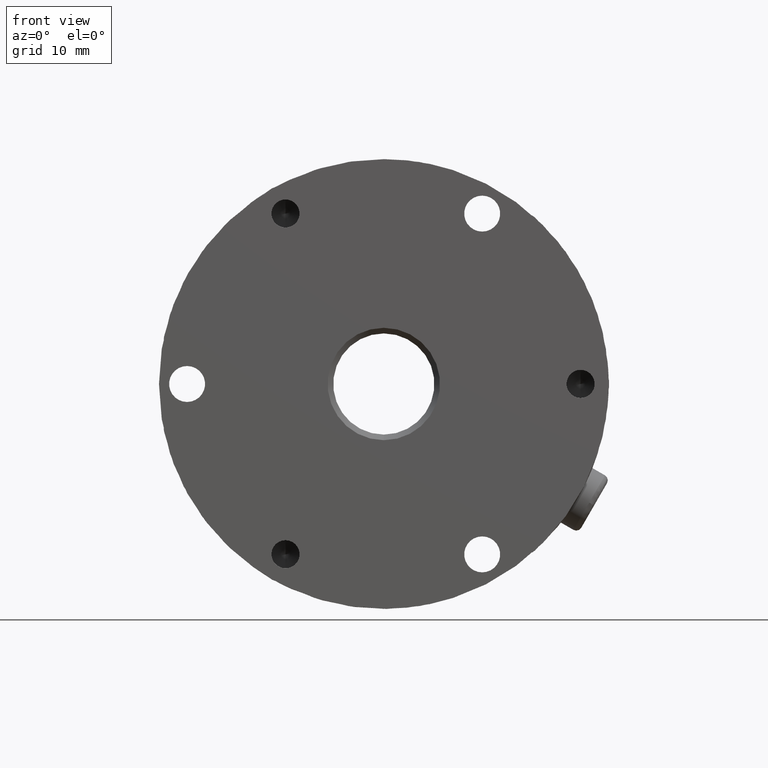
[diagram: clean part render]
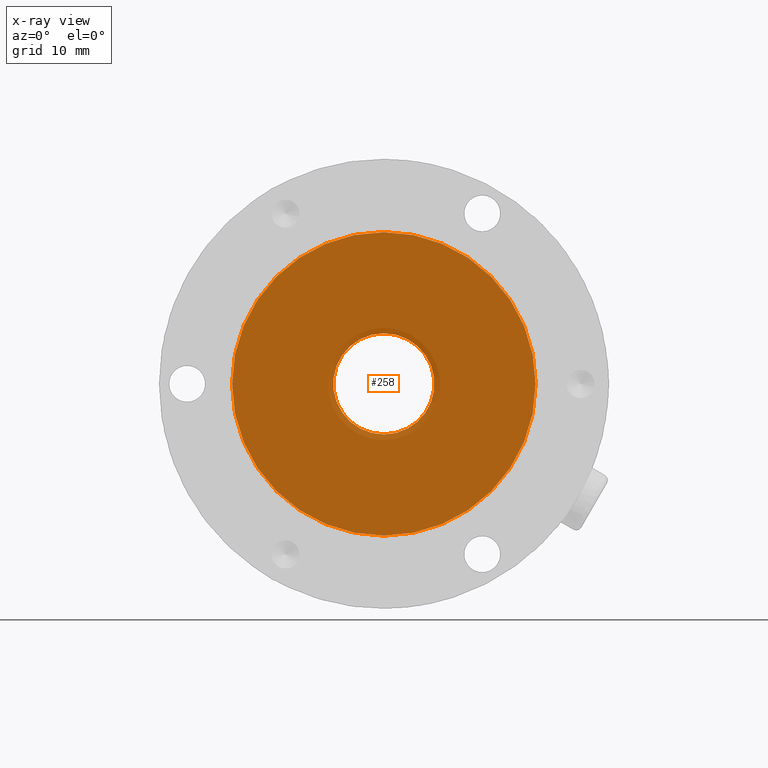
[diagram: x-ray — body ghosted, one internal face saturated and labeled with its STEP entity id]
A machine part, front view, then the same camera in x-ray: the body is ghosted and one INTERNAL B-rep face — a face not visible from any outside direction — is saturated and labeled: STEP entity #258.
In plain terms, the highlighted planar face has unit normal (-0, -1, -0).
Its self-contained STEP definition (entity closure, byte-faithful):
#258 = ADVANCED_FACE ( 'NONE', ( #4913, #8508 ), #6029, .T. ) ;
#638 = EDGE_CURVE ( 'NONE', #3051, #5550, #6712, .T. ) ;
#1601 = CIRCLE ( 'NONE', #1818, 13.50000000000000711 ) ;
#1818 = AXIS2_PLACEMENT_3D ( 'NONE', #3722, #4487, #2340 ) ;
#1919 = CARTESIAN_POINT ( 'NONE',  ( -0.1489901573797435541, -68.53216099891339752, 0.2983377589557917875 ) ) ;
#2264 = CARTESIAN_POINT ( 'NONE',  ( -0.1489901573797430268, -68.53216099891339752, -4.201662241044211932 ) ) ;
#2335 = CIRCLE ( 'NONE', #5479, 13.50000000000000711 ) ;
#2340 = DIRECTION ( 'NONE',  ( 0.0000000000000000000, 0.0000000000000000000, 1.000000000000000000 ) ) ;
#3051 = VERTEX_POINT ( 'NONE', #2264 ) ;
#3182 = DIRECTION ( 'NONE',  ( -1.963197694344906894E-17, -1.000000000000000000, -6.123233995736565123E-17 ) ) ;
#3390 = CARTESIAN_POINT ( 'NONE',  ( -0.1489901573797418888, -68.53216099891339752, -13.20166224104421460 ) ) ;
#3704 = ORIENTED_EDGE ( 'NONE', *, *, #638, .T. ) ;
#3722 = CARTESIAN_POINT ( 'NONE',  ( -0.1489901573797435541, -68.53216099891339752, 0.2983377589557917875 ) ) ;
#3821 = VERTEX_POINT ( 'NONE', #3390 ) ;
#3863 = DIRECTION ( 'NONE',  ( 0.0000000000000000000, 0.0000000000000000000, 1.000000000000000000 ) ) ;
#3906 = AXIS2_PLACEMENT_3D ( 'NONE', #6603, #3182, #7424 ) ;
#4123 = DIRECTION ( 'NONE',  ( 0.0000000000000000000, 0.0000000000000000000, 1.000000000000000000 ) ) ;
#4430 = DIRECTION ( 'NONE',  ( 1.963197694344359005E-17, 1.000000000000000000, 6.123233995736878202E-17 ) ) ;
#4487 = DIRECTION ( 'NONE',  ( -1.963197694344359005E-17, -1.000000000000000000, -6.123233995736878202E-17 ) ) ;
#4659 = DIRECTION ( 'NONE',  ( 1.963197694344359005E-17, 1.000000000000000000, 6.123233995736878202E-17 ) ) ;
#4744 = CARTESIAN_POINT ( 'NONE',  ( -0.1489901573797435541, -68.53216099891339752, 13.79833775895579784 ) ) ;
#4763 = EDGE_CURVE ( 'NONE', #3821, #7676, #2335, .T. ) ;
#4885 = AXIS2_PLACEMENT_3D ( 'NONE', #8032, #4430, #5927 ) ;
#4913 = FACE_BOUND ( 'NONE', #7364, .T. ) ;
#5296 = CIRCLE ( 'NONE', #7448, 4.500000000000003553 ) ;
#5322 = EDGE_CURVE ( 'NONE', #5550, #3051, #5296, .T. ) ;
#5479 = AXIS2_PLACEMENT_3D ( 'NONE', #1919, #9127, #4123 ) ;
#5495 = ORIENTED_EDGE ( 'NONE', *, *, #7455, .T. ) ;
#5550 = VERTEX_POINT ( 'NONE', #8888 ) ;
#5765 = ORIENTED_EDGE ( 'NONE', *, *, #5322, .T. ) ;
#5927 = DIRECTION ( 'NONE',  ( 0.0000000000000000000, 0.0000000000000000000, 1.000000000000000000 ) ) ;
#6029 = PLANE ( 'NONE',  #3906 ) ;
#6603 = CARTESIAN_POINT ( 'NONE',  ( -0.1489901573797435541, -68.53216099891339752, 0.2983377589557917875 ) ) ;
#6712 = CIRCLE ( 'NONE', #4885, 4.500000000000003553 ) ;
#6884 = EDGE_LOOP ( 'NONE', ( #5495, #7568 ) ) ;
#7364 = EDGE_LOOP ( 'NONE', ( #5765, #3704 ) ) ;
#7424 = DIRECTION ( 'NONE',  ( 0.0000000000000000000, 6.123233995736565123E-17, -1.000000000000000000 ) ) ;
#7448 = AXIS2_PLACEMENT_3D ( 'NONE', #7476, #4659, #3863 ) ;
#7455 = EDGE_CURVE ( 'NONE', #7676, #3821, #1601, .T. ) ;
#7476 = CARTESIAN_POINT ( 'NONE',  ( -0.1489901573797435541, -68.53216099891339752, 0.2983377589557917875 ) ) ;
#7568 = ORIENTED_EDGE ( 'NONE', *, *, #4763, .T. ) ;
#7676 = VERTEX_POINT ( 'NONE', #4744 ) ;
#8032 = CARTESIAN_POINT ( 'NONE',  ( -0.1489901573797435541, -68.53216099891339752, 0.2983377589557917875 ) ) ;
#8508 = FACE_OUTER_BOUND ( 'NONE', #6884, .T. ) ;
#8888 = CARTESIAN_POINT ( 'NONE',  ( -0.1489901573797435541, -68.53216099891339752, 4.798337758955794285 ) ) ;
#9127 = DIRECTION ( 'NONE',  ( -1.963197694344359005E-17, -1.000000000000000000, -6.123233995736878202E-17 ) ) ;